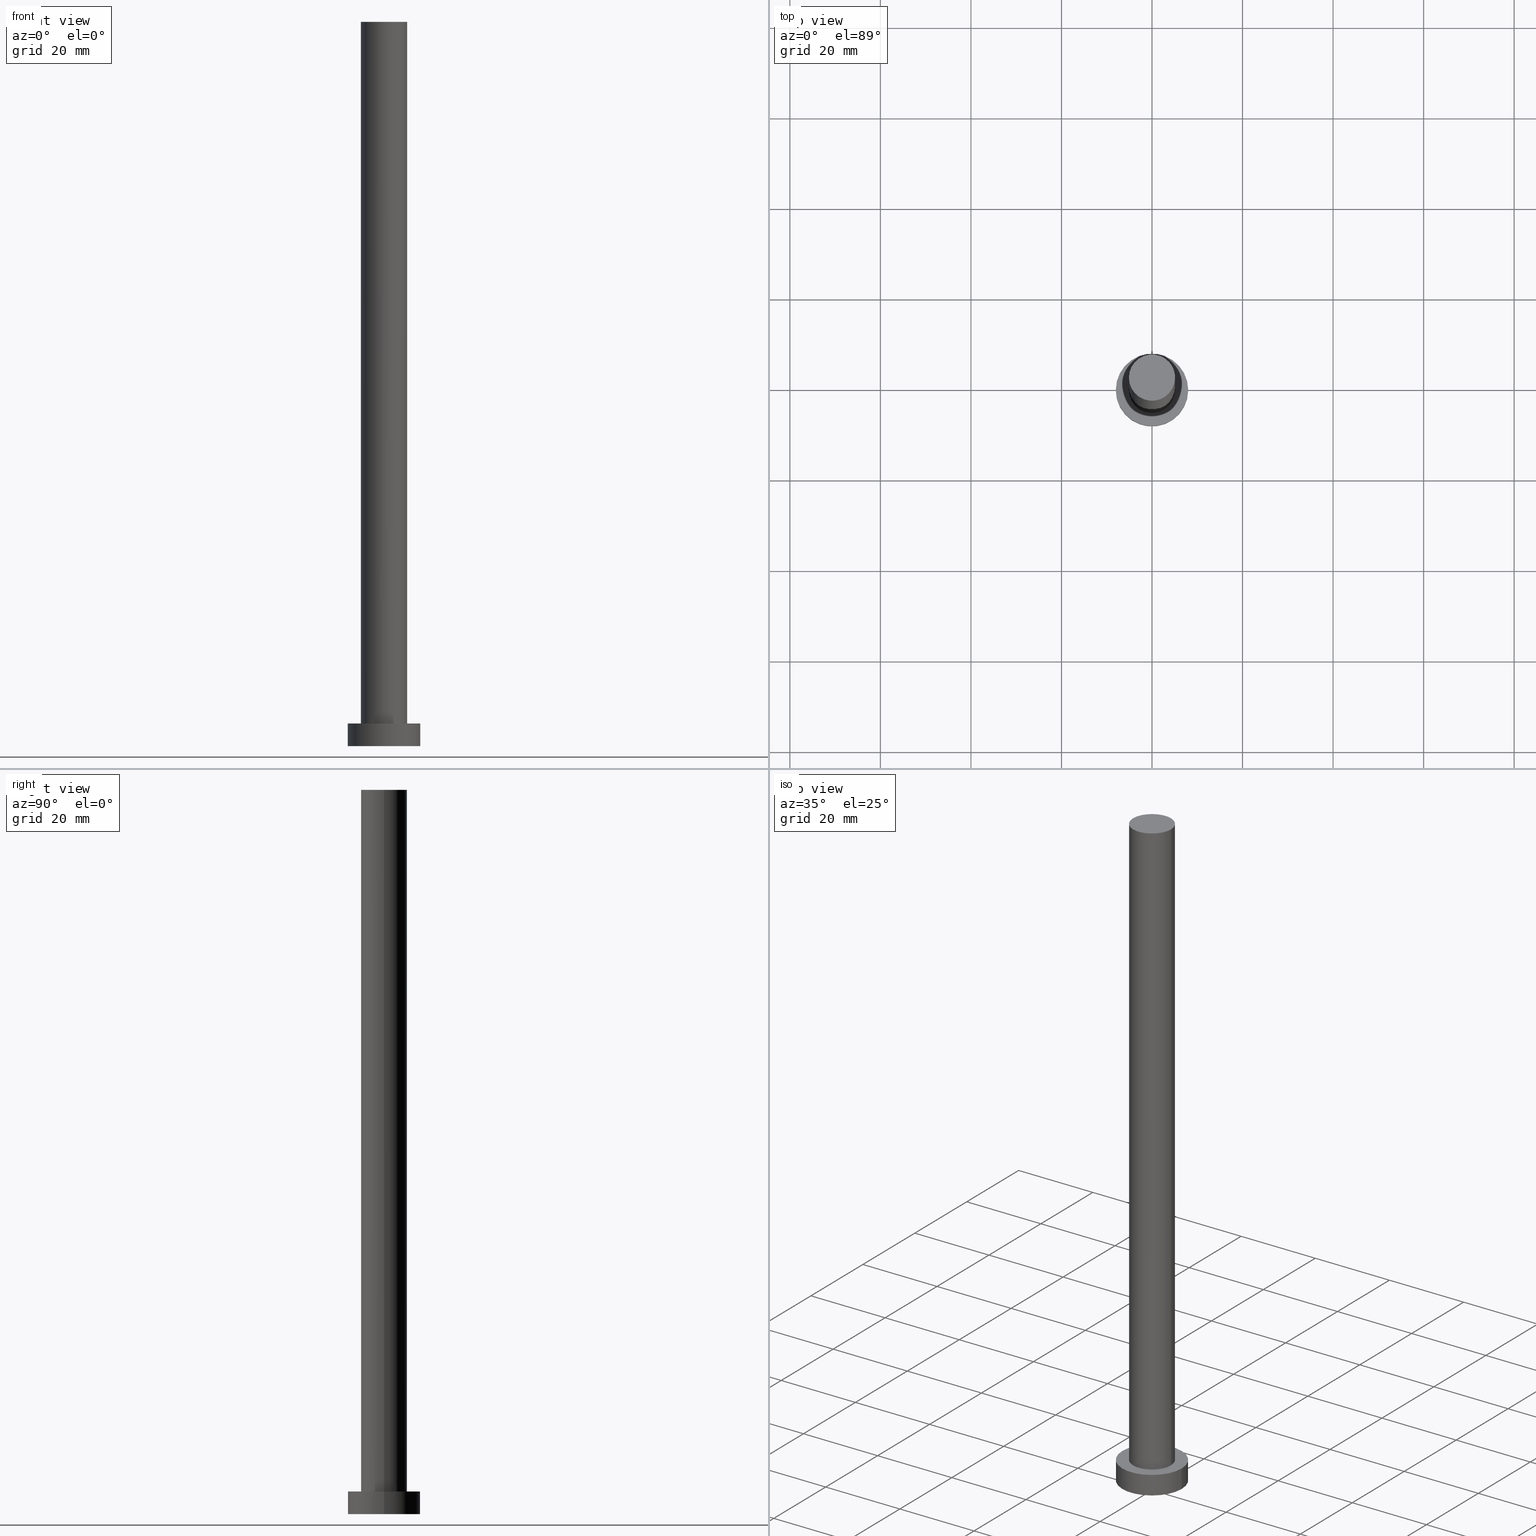
[diagram: canonical four-view strip — front | top / right | iso, engineering-drawing reading convention]
A machine part, canonical four-view strip (front | top / right | iso — engineering-drawing reading convention). The complete STEP part file that produces these views, byte-faithful:
ISO-10303-21;
HEADER;
FILE_DESCRIPTION (( 'STEP AP203' ),
    '1' );
FILE_NAME ('071d.STEP',
    '2023-02-13T13:16:01',
    ( '' ),
    ( '' ),
    'SwSTEP 2.0',
    'SolidWorks 2019',
    '' );
FILE_SCHEMA (( 'CONFIG_CONTROL_DESIGN' ));
ENDSEC;

DATA;
#1 = APPROVAL_ROLE ( '' ) ;
#2 = DIRECTION ( 'NONE',  ( 0.000000000000000000, 0.000000000000000000, 1.000000000000000000 ) ) ;
#3 = CARTESIAN_POINT ( 'NONE',  ( 0.000000000000000000, 0.000000000000000000, 160.0000000000000000 ) ) ;
#4 = ORIENTED_EDGE ( 'NONE', *, *, #86, .T. ) ;
#5 = LOCAL_TIME ( 14, 16, 1.000000000000000000, #255 ) ;
#6 = APPROVAL_DATE_TIME ( #141, #121 ) ;
#7 = CARTESIAN_POINT ( 'NONE',  ( 0.000000000000000000, 0.000000000000000000, 5.000000000000000000 ) ) ;
#8 = AXIS2_PLACEMENT_3D ( 'NONE', #113, #247, #66 ) ;
#9 = AXIS2_PLACEMENT_3D ( 'NONE', #27, #169, #228 ) ;
#10 = DIRECTION ( 'NONE',  ( 0.000000000000000000, 0.000000000000000000, 1.000000000000000000 ) ) ;
#11 = CARTESIAN_POINT ( 'NONE',  ( -5.099999999999999645, 0.000000000000000000, 160.0000000000000000 ) ) ;
#12 = DIRECTION ( 'NONE',  ( 1.000000000000000000, 0.000000000000000000, -0.000000000000000000 ) ) ;
#13 = APPROVAL_PERSON_ORGANIZATION ( #18, #117, #1 ) ;
#14 = DIRECTION ( 'NONE',  ( 0.000000000000000000, 0.000000000000000000, 1.000000000000000000 ) ) ;
#15 = PERSON_AND_ORGANIZATION ( #248, #105 ) ;
#16 = ADVANCED_FACE ( 'NONE', ( #200 ), #102, .T. ) ;
#17 = AXIS2_PLACEMENT_3D ( 'NONE', #7, #246, #68 ) ;
#18 = PERSON_AND_ORGANIZATION ( #248, #105 ) ;
#19 = COORDINATED_UNIVERSAL_TIME_OFFSET ( 1, 0, .AHEAD. ) ;
#20 = AXIS2_PLACEMENT_3D ( 'NONE', #78, #139, #196 ) ;
#21 = ORIENTED_EDGE ( 'NONE', *, *, #197, .T. ) ;
#22 = DIRECTION ( 'NONE',  ( 0.000000000000000000, 0.000000000000000000, 1.000000000000000000 ) ) ;
#23 = VERTEX_POINT ( 'NONE', #160 ) ;
#24 = EDGE_LOOP ( 'NONE', ( #63, #106, #4, #80 ) ) ;
#25 = CARTESIAN_POINT ( 'NONE',  ( 0.000000000000000000, 0.000000000000000000, 5.000000000000000000 ) ) ;
#26 = PLANE ( 'NONE',  #9 ) ;
#27 = CARTESIAN_POINT ( 'NONE',  ( 0.000000000000000000, 0.000000000000000000, 0.000000000000000000 ) ) ;
#28 = APPROVAL ( #156, 'NEUR�EN�' ) ;
#29 = DIRECTION ( 'NONE',  ( -0.000000000000000000, -0.000000000000000000, -1.000000000000000000 ) ) ;
#30 = CARTESIAN_POINT ( 'NONE',  ( 8.000000000000000000, 9.797174393178825657E-16, 0.000000000000000000 ) ) ;
#31 = EDGE_CURVE ( 'NONE', #201, #43, #207, .T. ) ;
#32 = APPROVAL_STATUS ( 'not_yet_approved' ) ;
#33 = ADVANCED_BREP_SHAPE_REPRESENTATION ( '071d', ( #138, #119 ), #168 ) ;
#34 = DATE_AND_TIME ( #36, #253 ) ;
#35 = APPROVAL_DATE_TIME ( #55, #28 ) ;
#36 = CALENDAR_DATE ( 2023, 13, 2 ) ;
#37 = CALENDAR_DATE ( 2023, 13, 2 ) ;
#38 = APPROVAL_ROLE ( '' ) ;
#39 = EDGE_CURVE ( 'NONE', #23, #164, #212, .T. ) ;
#40 = ORIENTED_EDGE ( 'NONE', *, *, #31, .T. ) ;
#41 = SHAPE_DEFINITION_REPRESENTATION ( #208, #33 ) ;
#42 = ORIENTED_EDGE ( 'NONE', *, *, #222, .T. ) ;
#43 = VERTEX_POINT ( 'NONE', #30 ) ;
#44 = APPROVAL_STATUS ( 'not_yet_approved' ) ;
#45 = VERTEX_POINT ( 'NONE', #147 ) ;
#46 = ADVANCED_FACE ( 'NONE', ( #110, #250 ), #108, .T. ) ;
#47 = ORIENTED_EDGE ( 'NONE', *, *, #104, .T. ) ;
#48 = CARTESIAN_POINT ( 'NONE',  ( 5.099999999999999645, 6.245698675651500839E-16, 160.0000000000000000 ) ) ;
#49 = DESIGN_CONTEXT ( 'detailed design', #191, 'design' ) ;
#50 = DIRECTION ( 'NONE',  ( 1.000000000000000000, 0.000000000000000000, 0.000000000000000000 ) ) ;
#51 = CARTESIAN_POINT ( 'NONE',  ( 0.000000000000000000, 0.000000000000000000, 5.000000000000000000 ) ) ;
#52 = APPLICATION_CONTEXT ( 'configuration controlled 3d designs of mechanical parts and assemblies' ) ;
#53 = DIRECTION ( 'NONE',  ( 1.000000000000000000, 0.000000000000000000, 0.000000000000000000 ) ) ;
#54 = CARTESIAN_POINT ( 'NONE',  ( 0.000000000000000000, 0.000000000000000000, 5.000000000000000000 ) ) ;
#55 = DATE_AND_TIME ( #93, #202 ) ;
#56 = PERSON_AND_ORGANIZATION_ROLE ( 'design_supplier' ) ;
#57 = PERSON_AND_ORGANIZATION ( #248, #105 ) ;
#58 = LOCAL_TIME ( 14, 16, 1.000000000000000000, #158 ) ;
#59 = CALENDAR_DATE ( 2023, 13, 2 ) ;
#60 = EDGE_CURVE ( 'NONE', #164, #201, #184, .T. ) ;
#61 = EDGE_LOOP ( 'NONE', ( #107, #101, #21, #142 ) ) ;
#62 = VERTEX_POINT ( 'NONE', #189 ) ;
#63 = ORIENTED_EDGE ( 'NONE', *, *, #172, .F. ) ;
#64 = AXIS2_PLACEMENT_3D ( 'NONE', #238, #22, #103 ) ;
#65 = DIRECTION ( 'NONE',  ( -1.000000000000000000, 0.000000000000000000, 0.000000000000000000 ) ) ;
#66 = DIRECTION ( 'NONE',  ( -1.000000000000000000, 0.000000000000000000, 0.000000000000000000 ) ) ;
#67 = ADVANCED_FACE ( 'NONE', ( #133 ), #167, .T. ) ;
#68 = DIRECTION ( 'NONE',  ( 1.000000000000000000, 0.000000000000000000, -0.000000000000000000 ) ) ;
#69 = PLANE ( 'NONE',  #231 ) ;
#70 = AXIS2_PLACEMENT_3D ( 'NONE', #227, #92, #53 ) ;
#71 = DIRECTION ( 'NONE',  ( -0.000000000000000000, -0.000000000000000000, -1.000000000000000000 ) ) ;
#72 = CARTESIAN_POINT ( 'NONE',  ( -8.000000000000000000, 0.000000000000000000, 5.000000000000000000 ) ) ;
#73 = PRODUCT_RELATED_PRODUCT_CATEGORY ( 'detail', '', ( #84 ) ) ;
#74 = CIRCLE ( 'NONE', #135, 5.099999999999999645 ) ;
#75 = DATE_AND_TIME ( #116, #58 ) ;
#76 = APPROVAL_ROLE ( '' ) ;
#77 = PRODUCT_DEFINITION_FORMATION_WITH_SPECIFIED_SOURCE ( 'LIBOVOLN�', '', #84, .NOT_KNOWN. ) ;
#78 = CARTESIAN_POINT ( 'NONE',  ( 0.000000000000000000, 0.000000000000000000, 0.000000000000000000 ) ) ;
#79 = DATE_TIME_ROLE ( 'classification_date' ) ;
#80 = ORIENTED_EDGE ( 'NONE', *, *, #126, .T. ) ;
#81 = EDGE_LOOP ( 'NONE', ( #42, #240 ) ) ;
#82 = EDGE_LOOP ( 'NONE', ( #163, #241, #144, #40 ) ) ;
#83 = ORIENTED_EDGE ( 'NONE', *, *, #60, .F. ) ;
#84 = PRODUCT ( '071d', '071d', '', ( #157 ) ) ;
#85 = DIRECTION ( 'NONE',  ( -1.000000000000000000, 0.000000000000000000, 0.000000000000000000 ) ) ;
#86 = EDGE_CURVE ( 'NONE', #145, #221, #249, .T. ) ;
#87 = CIRCLE ( 'NONE', #185, 5.099999999999999645 ) ;
#88 = CARTESIAN_POINT ( 'NONE',  ( 0.000000000000000000, 0.000000000000000000, 5.000000000000000000 ) ) ;
#89 = DIRECTION ( 'NONE',  ( 1.000000000000000000, 0.000000000000000000, 0.000000000000000000 ) ) ;
#90 = CARTESIAN_POINT ( 'NONE',  ( 8.000000000000000000, 9.797174393178825657E-16, 5.000000000000000000 ) ) ;
#91 = APPROVAL_PERSON_ORGANIZATION ( #159, #121, #38 ) ;
#92 = DIRECTION ( 'NONE',  ( 0.000000000000000000, 0.000000000000000000, 1.000000000000000000 ) ) ;
#93 = CALENDAR_DATE ( 2023, 13, 2 ) ;
#94 =( NAMED_UNIT ( * ) PLANE_ANGLE_UNIT ( ) SI_UNIT ( $, .RADIAN. ) );
#95 = VECTOR ( 'NONE', #29, 1000.000000000000000 ) ;
#96 = CC_DESIGN_APPROVAL ( #28, ( #77 ) ) ;
#97 = DIRECTION ( 'NONE',  ( 1.000000000000000000, 0.000000000000000000, 0.000000000000000000 ) ) ;
#98 = CYLINDRICAL_SURFACE ( 'NONE', #161, 8.000000000000000000 ) ;
#99 = ADVANCED_FACE ( 'NONE', ( #165 ), #224, .T. ) ;
#100 = AXIS2_PLACEMENT_3D ( 'NONE', #25, #244, #225 ) ;
#101 = ORIENTED_EDGE ( 'NONE', *, *, #172, .T. ) ;
#102 = CYLINDRICAL_SURFACE ( 'NONE', #176, 5.099999999999999645 ) ;
#103 = DIRECTION ( 'NONE',  ( 1.000000000000000000, 0.000000000000000000, 0.000000000000000000 ) ) ;
#104 = EDGE_CURVE ( 'NONE', #23, #43, #154, .T. ) ;
#105 = ORGANIZATION ( 'NEUR�EN�', 'NEUR�EN�', '' ) ;
#106 = ORIENTED_EDGE ( 'NONE', *, *, #109, .F. ) ;
#107 = ORIENTED_EDGE ( 'NONE', *, *, #129, .F. ) ;
#108 = PLANE ( 'NONE',  #17 ) ;
#109 = EDGE_CURVE ( 'NONE', #145, #45, #74, .T. ) ;
#110 = FACE_BOUND ( 'NONE', #182, .T. ) ;
#111 = SECURITY_CLASSIFICATION ( '', '', #215 ) ;
#112 = DIRECTION ( 'NONE',  ( 1.000000000000000000, 0.000000000000000000, 0.000000000000000000 ) ) ;
#113 = CARTESIAN_POINT ( 'NONE',  ( 0.000000000000000000, 0.000000000000000000, 160.0000000000000000 ) ) ;
#114 = CLOSED_SHELL ( 'NONE', ( #99, #67, #236, #46, #177, #16, #136 ) ) ;
#115 = CARTESIAN_POINT ( 'NONE',  ( -5.099999999999999645, 0.000000000000000000, 160.0000000000000000 ) ) ;
#116 = CALENDAR_DATE ( 2023, 13, 2 ) ;
#117 = APPROVAL ( #32, 'NEUR�EN�' ) ;
#118 = DATE_TIME_ROLE ( 'creation_date' ) ;
#119 = AXIS2_PLACEMENT_3D ( 'NONE', #230, #2, #97 ) ;
#120 = PERSON_AND_ORGANIZATION_ROLE ( 'classification_officer' ) ;
#121 = APPROVAL ( #44, 'NEUR�EN�' ) ;
#122 = VECTOR ( 'NONE', #187, 1000.000000000000000 ) ;
#123 = ORIENTED_EDGE ( 'NONE', *, *, #197, .F. ) ;
#124 = VECTOR ( 'NONE', #204, 1000.000000000000000 ) ;
#125 = ORIENTED_EDGE ( 'NONE', *, *, #242, .F. ) ;
#126 = EDGE_CURVE ( 'NONE', #221, #62, #179, .T. ) ;
#127 = ORIENTED_EDGE ( 'NONE', *, *, #31, .F. ) ;
#128 = EDGE_LOOP ( 'NONE', ( #127, #125 ) ) ;
#129 = EDGE_CURVE ( 'NONE', #45, #145, #87, .T. ) ;
#130 = CARTESIAN_POINT ( 'NONE',  ( -8.000000000000000000, 0.000000000000000000, 5.000000000000000000 ) ) ;
#131 = CARTESIAN_POINT ( 'NONE',  ( 0.000000000000000000, 0.000000000000000000, 160.0000000000000000 ) ) ;
#132 = DIRECTION ( 'NONE',  ( 0.000000000000000000, 0.000000000000000000, 1.000000000000000000 ) ) ;
#133 = FACE_OUTER_BOUND ( 'NONE', #218, .T. ) ;
#134 = DIRECTION ( 'NONE',  ( -1.000000000000000000, 0.000000000000000000, 0.000000000000000000 ) ) ;
#135 = AXIS2_PLACEMENT_3D ( 'NONE', #183, #166, #50 ) ;
#136 = ADVANCED_FACE ( 'NONE', ( #146 ), #69, .T. ) ;
#137 = PERSON_AND_ORGANIZATION ( #248, #105 ) ;
#138 = MANIFOLD_SOLID_BREP ( 'P�idat vysunut�m3', #114 ) ;
#139 = DIRECTION ( 'NONE',  ( 0.000000000000000000, 0.000000000000000000, 1.000000000000000000 ) ) ;
#140 = COORDINATED_UNIVERSAL_TIME_OFFSET ( 1, 0, .AHEAD. ) ;
#141 = DATE_AND_TIME ( #37, #235 ) ;
#142 = ORIENTED_EDGE ( 'NONE', *, *, #86, .F. ) ;
#143 = CC_DESIGN_SECURITY_CLASSIFICATION ( #111, ( #77 ) ) ;
#144 = ORIENTED_EDGE ( 'NONE', *, *, #60, .T. ) ;
#145 = VERTEX_POINT ( 'NONE', #115 ) ;
#146 = FACE_OUTER_BOUND ( 'NONE', #180, .T. ) ;
#147 = CARTESIAN_POINT ( 'NONE',  ( 5.099999999999999645, 6.245698675651500839E-16, 160.0000000000000000 ) ) ;
#148 = CC_DESIGN_APPROVAL ( #121, ( #111 ) ) ;
#149 = CARTESIAN_POINT ( 'NONE',  ( -8.000000000000000000, 0.000000000000000000, 0.000000000000000000 ) ) ;
#150 = CC_DESIGN_PERSON_AND_ORGANIZATION_ASSIGNMENT ( #214, #56, ( #77 ) ) ;
#151 = CC_DESIGN_APPROVAL ( #117, ( #206 ) ) ;
#152 = CIRCLE ( 'NONE', #70, 8.000000000000000000 ) ;
#153 = CARTESIAN_POINT ( 'NONE',  ( -5.099999999999999645, 0.000000000000000000, 5.000000000000000000 ) ) ;
#154 = LINE ( 'NONE', #90, #122 ) ;
#155 =( NAMED_UNIT ( * ) SI_UNIT ( $, .STERADIAN. ) SOLID_ANGLE_UNIT ( ) );
#156 = APPROVAL_STATUS ( 'not_yet_approved' ) ;
#157 = MECHANICAL_CONTEXT ( 'NONE', #52, 'mechanical' ) ;
#158 = COORDINATED_UNIVERSAL_TIME_OFFSET ( 1, 0, .AHEAD. ) ;
#159 = PERSON_AND_ORGANIZATION ( #248, #105 ) ;
#160 = CARTESIAN_POINT ( 'NONE',  ( 8.000000000000000000, 9.797174393178825657E-16, 5.000000000000000000 ) ) ;
#161 = AXIS2_PLACEMENT_3D ( 'NONE', #195, #192, #134 ) ;
#162 = DIRECTION ( 'NONE',  ( -0.000000000000000000, -0.000000000000000000, -1.000000000000000000 ) ) ;
#163 = ORIENTED_EDGE ( 'NONE', *, *, #104, .F. ) ;
#164 = VERTEX_POINT ( 'NONE', #72 ) ;
#165 = FACE_OUTER_BOUND ( 'NONE', #61, .T. ) ;
#166 = DIRECTION ( 'NONE',  ( 0.000000000000000000, 0.000000000000000000, 1.000000000000000000 ) ) ;
#167 = CYLINDRICAL_SURFACE ( 'NONE', #251, 8.000000000000000000 ) ;
#168 =( GEOMETRIC_REPRESENTATION_CONTEXT ( 3 ) GLOBAL_UNCERTAINTY_ASSIGNED_CONTEXT ( ( #181 ) ) GLOBAL_UNIT_ASSIGNED_CONTEXT ( ( #173, #94, #155 ) ) REPRESENTATION_CONTEXT ( 'NONE', 'WORKASPACE' ) );
#169 = DIRECTION ( 'NONE',  ( 0.000000000000000000, 0.000000000000000000, 1.000000000000000000 ) ) ;
#170 = AXIS2_PLACEMENT_3D ( 'NONE', #88, #132, #112 ) ;
#171 = FACE_OUTER_BOUND ( 'NONE', #82, .T. ) ;
#172 = EDGE_CURVE ( 'NONE', #45, #62, #210, .T. ) ;
#173 =( LENGTH_UNIT ( ) NAMED_UNIT ( * ) SI_UNIT ( .MILLI., .METRE. ) );
#174 = APPLICATION_PROTOCOL_DEFINITION ( 'international standard', 'config_control_design', 1994, #52 ) ;
#175 = PERSON_AND_ORGANIZATION ( #248, #105 ) ;
#176 = AXIS2_PLACEMENT_3D ( 'NONE', #3, #162, #65 ) ;
#177 = ADVANCED_FACE ( 'NONE', ( #188 ), #26, .F. ) ;
#178 = ORIENTED_EDGE ( 'NONE', *, *, #129, .T. ) ;
#179 = CIRCLE ( 'NONE', #226, 5.099999999999999645 ) ;
#180 = EDGE_LOOP ( 'NONE', ( #203, #178 ) ) ;
#181 = UNCERTAINTY_MEASURE_WITH_UNIT (LENGTH_MEASURE( 1.000000000000000082E-05 ), #173, 'distance_accuracy_value', 'NONE');
#182 = EDGE_LOOP ( 'NONE', ( #220, #123 ) ) ;
#183 = CARTESIAN_POINT ( 'NONE',  ( 0.000000000000000000, 0.000000000000000000, 160.0000000000000000 ) ) ;
#184 = LINE ( 'NONE', #130, #95 ) ;
#185 = AXIS2_PLACEMENT_3D ( 'NONE', #131, #14, #205 ) ;
#186 = CC_DESIGN_DATE_AND_TIME_ASSIGNMENT ( #216, #118, ( #206 ) ) ;
#187 = DIRECTION ( 'NONE',  ( -0.000000000000000000, -0.000000000000000000, -1.000000000000000000 ) ) ;
#188 = FACE_OUTER_BOUND ( 'NONE', #128, .T. ) ;
#189 = CARTESIAN_POINT ( 'NONE',  ( 5.099999999999999645, 6.245698675651500839E-16, 5.000000000000000000 ) ) ;
#190 = PERSON_AND_ORGANIZATION_ROLE ( 'creator' ) ;
#191 = APPLICATION_CONTEXT ( 'configuration controlled 3d designs of mechanical parts and assemblies' ) ;
#192 = DIRECTION ( 'NONE',  ( -0.000000000000000000, -0.000000000000000000, -1.000000000000000000 ) ) ;
#193 = APPROVAL_PERSON_ORGANIZATION ( #15, #28, #76 ) ;
#194 = CC_DESIGN_PERSON_AND_ORGANIZATION_ASSIGNMENT ( #137, #233, ( #77 ) ) ;
#195 = CARTESIAN_POINT ( 'NONE',  ( 0.000000000000000000, 0.000000000000000000, 5.000000000000000000 ) ) ;
#196 = DIRECTION ( 'NONE',  ( 1.000000000000000000, 0.000000000000000000, 0.000000000000000000 ) ) ;
#197 = EDGE_CURVE ( 'NONE', #62, #221, #219, .T. ) ;
#198 = ORIENTED_EDGE ( 'NONE', *, *, #242, .T. ) ;
#199 = CC_DESIGN_DATE_AND_TIME_ASSIGNMENT ( #34, #79, ( #111 ) ) ;
#200 = FACE_OUTER_BOUND ( 'NONE', #24, .T. ) ;
#201 = VERTEX_POINT ( 'NONE', #149 ) ;
#202 = LOCAL_TIME ( 14, 16, 1.000000000000000000, #19 ) ;
#203 = ORIENTED_EDGE ( 'NONE', *, *, #109, .T. ) ;
#204 = DIRECTION ( 'NONE',  ( -0.000000000000000000, -0.000000000000000000, -1.000000000000000000 ) ) ;
#205 = DIRECTION ( 'NONE',  ( 1.000000000000000000, 0.000000000000000000, 0.000000000000000000 ) ) ;
#206 = PRODUCT_DEFINITION ( 'NEZN�M�', '', #77, #49 ) ;
#207 = CIRCLE ( 'NONE', #64, 8.000000000000000000 ) ;
#208 = PRODUCT_DEFINITION_SHAPE ( 'NONE', 'NONE',  #206 ) ;
#209 = CARTESIAN_POINT ( 'NONE',  ( 0.000000000000000000, 0.000000000000000000, 160.0000000000000000 ) ) ;
#210 = LINE ( 'NONE', #48, #124 ) ;
#211 = DIRECTION ( 'NONE',  ( 0.000000000000000000, 0.000000000000000000, 1.000000000000000000 ) ) ;
#212 = CIRCLE ( 'NONE', #100, 8.000000000000000000 ) ;
#213 = PERSON_AND_ORGANIZATION ( #248, #105 ) ;
#214 = PERSON_AND_ORGANIZATION ( #248, #105 ) ;
#215 = SECURITY_CLASSIFICATION_LEVEL ( 'unclassified' ) ;
#216 = DATE_AND_TIME ( #59, #5 ) ;
#217 = APPLICATION_PROTOCOL_DEFINITION ( 'international standard', 'config_control_design', 1994, #191 ) ;
#218 = EDGE_LOOP ( 'NONE', ( #237, #47, #198, #83 ) ) ;
#219 = CIRCLE ( 'NONE', #170, 5.099999999999999645 ) ;
#220 = ORIENTED_EDGE ( 'NONE', *, *, #126, .F. ) ;
#221 = VERTEX_POINT ( 'NONE', #153 ) ;
#222 = EDGE_CURVE ( 'NONE', #164, #23, #152, .T. ) ;
#223 = DIRECTION ( 'NONE',  ( -0.000000000000000000, -0.000000000000000000, -1.000000000000000000 ) ) ;
#224 = CYLINDRICAL_SURFACE ( 'NONE', #8, 5.099999999999999645 ) ;
#225 = DIRECTION ( 'NONE',  ( 1.000000000000000000, 0.000000000000000000, 0.000000000000000000 ) ) ;
#226 = AXIS2_PLACEMENT_3D ( 'NONE', #54, #211, #89 ) ;
#227 = CARTESIAN_POINT ( 'NONE',  ( 0.000000000000000000, 0.000000000000000000, 5.000000000000000000 ) ) ;
#228 = DIRECTION ( 'NONE',  ( 1.000000000000000000, 0.000000000000000000, -0.000000000000000000 ) ) ;
#229 = VECTOR ( 'NONE', #71, 1000.000000000000000 ) ;
#230 = CARTESIAN_POINT ( 'NONE',  ( 0.000000000000000000, 0.000000000000000000, 0.000000000000000000 ) ) ;
#231 = AXIS2_PLACEMENT_3D ( 'NONE', #209, #10, #12 ) ;
#232 = CC_DESIGN_PERSON_AND_ORGANIZATION_ASSIGNMENT ( #175, #190, ( #206 ) ) ;
#233 = PERSON_AND_ORGANIZATION_ROLE ( 'creator' ) ;
#234 = APPROVAL_DATE_TIME ( #75, #117 ) ;
#235 = LOCAL_TIME ( 14, 16, 1.000000000000000000, #239 ) ;
#236 = ADVANCED_FACE ( 'NONE', ( #171 ), #98, .T. ) ;
#237 = ORIENTED_EDGE ( 'NONE', *, *, #39, .F. ) ;
#238 = CARTESIAN_POINT ( 'NONE',  ( 0.000000000000000000, 0.000000000000000000, 0.000000000000000000 ) ) ;
#239 = COORDINATED_UNIVERSAL_TIME_OFFSET ( 1, 0, .AHEAD. ) ;
#240 = ORIENTED_EDGE ( 'NONE', *, *, #39, .T. ) ;
#241 = ORIENTED_EDGE ( 'NONE', *, *, #222, .F. ) ;
#242 = EDGE_CURVE ( 'NONE', #43, #201, #243, .T. ) ;
#243 = CIRCLE ( 'NONE', #20, 8.000000000000000000 ) ;
#244 = DIRECTION ( 'NONE',  ( 0.000000000000000000, 0.000000000000000000, 1.000000000000000000 ) ) ;
#245 = CC_DESIGN_PERSON_AND_ORGANIZATION_ASSIGNMENT ( #57, #120, ( #111 ) ) ;
#246 = DIRECTION ( 'NONE',  ( 0.000000000000000000, 0.000000000000000000, 1.000000000000000000 ) ) ;
#247 = DIRECTION ( 'NONE',  ( -0.000000000000000000, -0.000000000000000000, -1.000000000000000000 ) ) ;
#248 = PERSON ( 'NEUR�EN�', 'NEUR�EN�', 'NEUR�EN�', ('NEUR�EN�'), ('NEUR�EN�'), ('NEUR�EN�') ) ;
#249 = LINE ( 'NONE', #11, #229 ) ;
#250 = FACE_OUTER_BOUND ( 'NONE', #81, .T. ) ;
#251 = AXIS2_PLACEMENT_3D ( 'NONE', #51, #223, #85 ) ;
#252 = CC_DESIGN_PERSON_AND_ORGANIZATION_ASSIGNMENT ( #213, #254, ( #84 ) ) ;
#253 = LOCAL_TIME ( 14, 16, 1.000000000000000000, #140 ) ;
#254 = PERSON_AND_ORGANIZATION_ROLE ( 'design_owner' ) ;
#255 = COORDINATED_UNIVERSAL_TIME_OFFSET ( 1, 0, .AHEAD. ) ;
ENDSEC;
END-ISO-10303-21;
